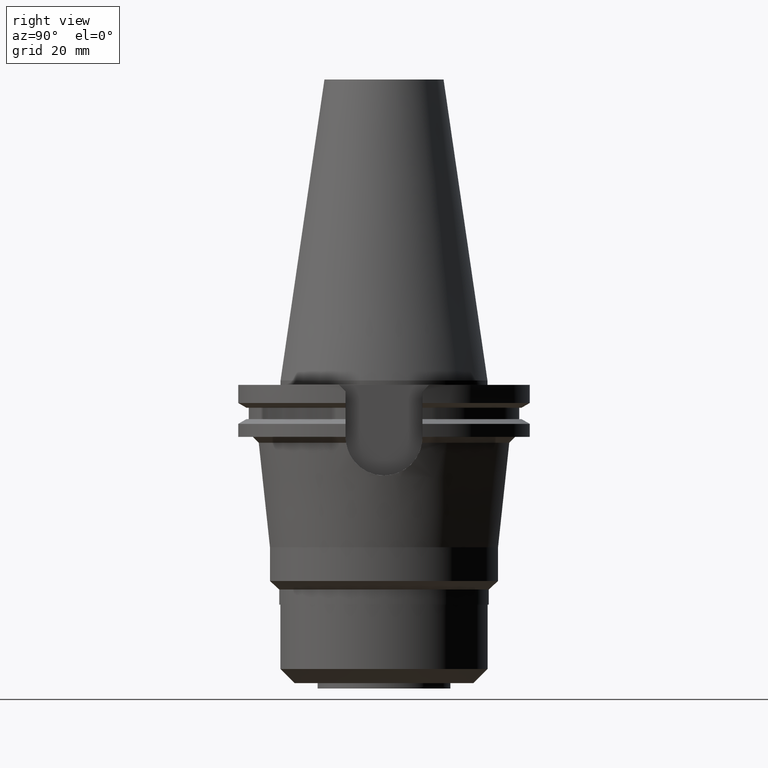
[diagram: clean part render]
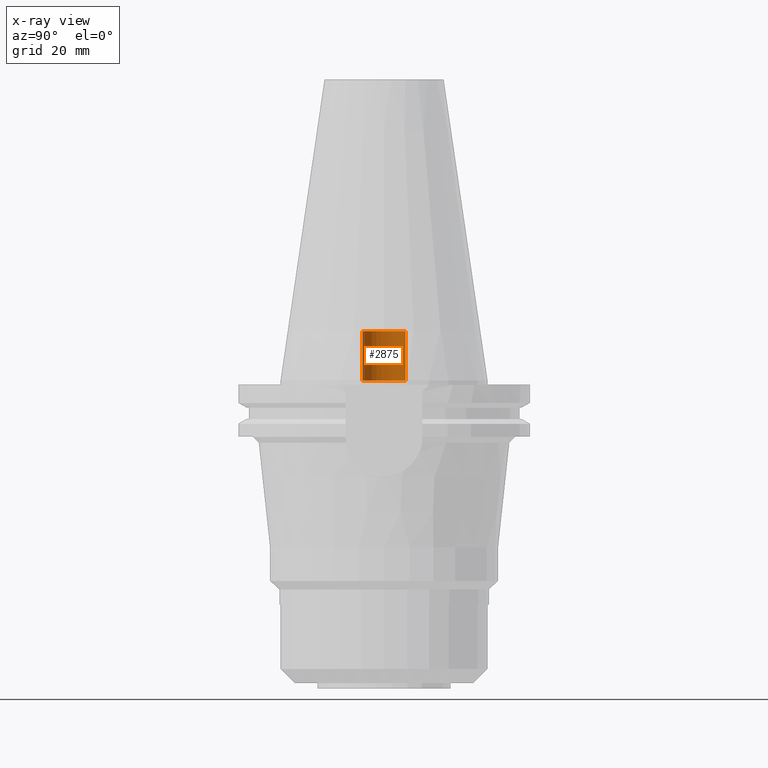
[diagram: x-ray — body ghosted, one internal face saturated and labeled with its STEP entity id]
A machine part, right view, then the same camera in x-ray: the body is ghosted and one INTERNAL B-rep face — a face not visible from any outside direction — is saturated and labeled: STEP entity #2875.
In plain terms, the highlighted cylindrical surface (edge-blend (fillet) strip) has radius 7.25 mm, axis along (0, 0, -1).
Its self-contained STEP definition (entity closure, byte-faithful):
#1412=CARTESIAN_POINT('',(0.E0,2.594781638033E-14,-9.947598300641E-14));
#1413=DIRECTION('',(0.E0,0.E0,-1.E0));
#1414=DIRECTION('',(0.E0,-1.E0,0.E0));
#1415=AXIS2_PLACEMENT_3D('',#1412,#1413,#1414);
#1427=DIRECTION('',(0.E0,0.E0,1.E0));
#1428=VECTOR('',#1427,1.66E1);
#1429=CARTESIAN_POINT('',(0.E0,7.25E0,-9.947598300641E-14));
#1430=LINE('',#1429,#1428);
#1442=DIRECTION('',(0.E0,0.E0,1.E0));
#1443=VECTOR('',#1442,1.66E1);
#1444=CARTESIAN_POINT('',(0.E0,-7.25E0,-9.947598300641E-14));
#1445=LINE('',#1444,#1443);
#1473=CARTESIAN_POINT('',(0.E0,2.594781638033E-14,1.66E1));
#1474=DIRECTION('',(0.E0,0.E0,1.E0));
#1475=DIRECTION('',(0.E0,1.E0,0.E0));
#1476=AXIS2_PLACEMENT_3D('',#1473,#1474,#1475);
#1561=CARTESIAN_POINT('',(0.E0,-7.25E0,1.66E1));
#1562=CARTESIAN_POINT('',(0.E0,7.25E0,1.66E1));
#1563=VERTEX_POINT('',#1561);
#1564=VERTEX_POINT('',#1562);
#1565=CARTESIAN_POINT('',(0.E0,7.25E0,-9.947598300641E-14));
#1566=VERTEX_POINT('',#1565);
#1567=CARTESIAN_POINT('',(0.E0,-7.25E0,-9.947598300641E-14));
#1568=VERTEX_POINT('',#1567);
#2863=CARTESIAN_POINT('',(0.E0,2.594781638033E-14,1.1188E2));
#2864=DIRECTION('',(0.E0,0.E0,-1.E0));
#2865=DIRECTION('',(0.E0,-1.E0,0.E0));
#2866=AXIS2_PLACEMENT_3D('',#2863,#2864,#2865);
#2867=CYLINDRICAL_SURFACE('',#2866,7.25E0);
#2868=ORIENTED_EDGE('',*,*,#2853,.F.);
#2869=ORIENTED_EDGE('',*,*,#2830,.F.);
#2870=ORIENTED_EDGE('',*,*,#2857,.T.);
#2872=ORIENTED_EDGE('',*,*,#2871,.F.);
#2873=EDGE_LOOP('',(#2868,#2869,#2870,#2872));
#2874=FACE_OUTER_BOUND('',#2873,.F.);
#1416=CIRCLE('',#1415,7.25E0);
#1477=CIRCLE('',#1476,7.25E0);
#2830=EDGE_CURVE('',#1568,#1566,#1416,.T.);
#2853=EDGE_CURVE('',#1566,#1564,#1430,.T.);
#2857=EDGE_CURVE('',#1568,#1563,#1445,.T.);
#2871=EDGE_CURVE('',#1564,#1563,#1477,.T.);
#2875=ADVANCED_FACE('',(#2874),#2867,.F.);